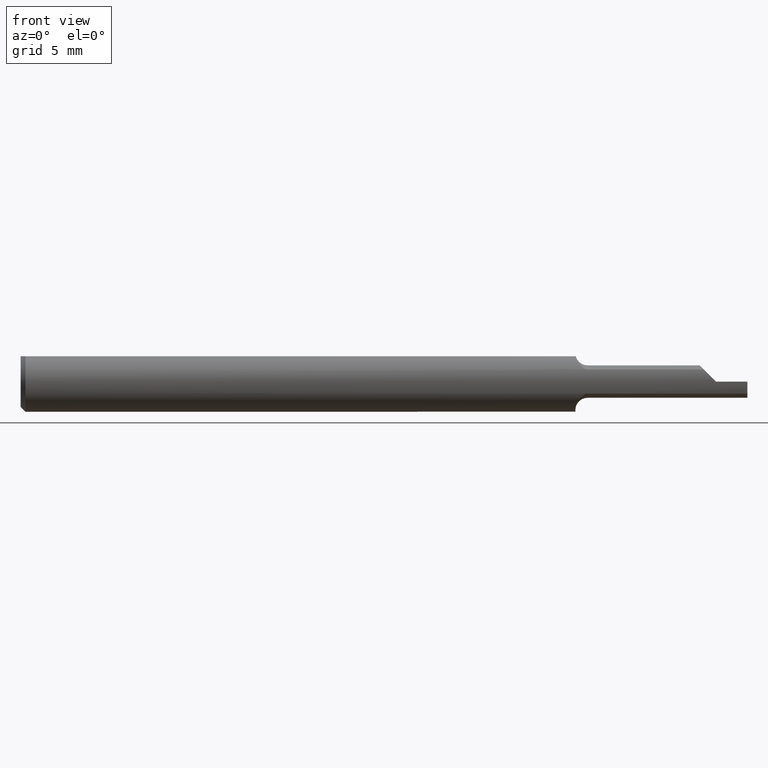
[diagram: clean part render]
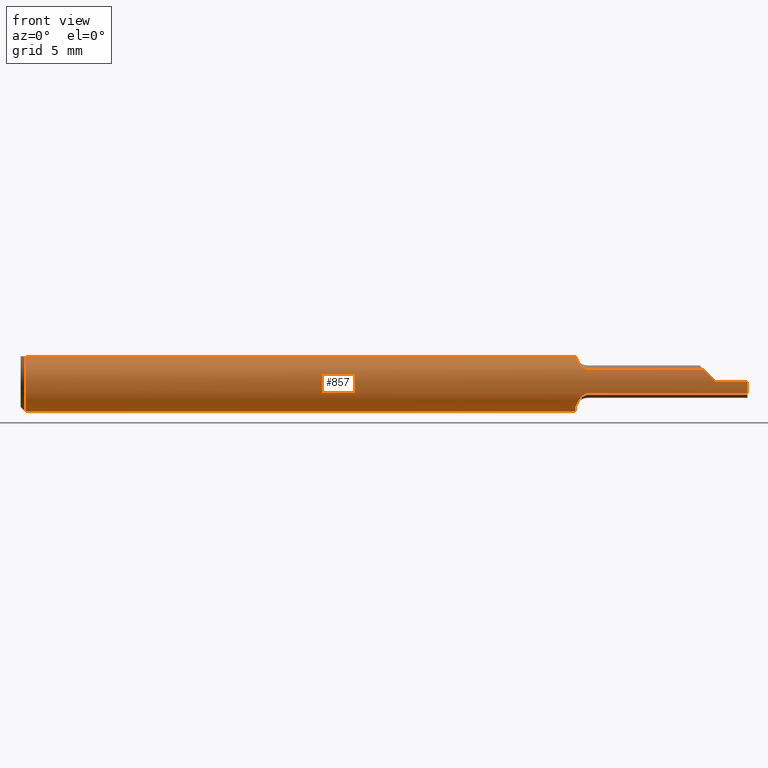
[diagram: same view with one face highlighted and labeled with its STEP entity id]
A machine part, front view. The second image highlights one B-rep face of the part: STEP entity #857.
In plain terms, the highlighted cylindrical surface (edge-blend (fillet) strip) has radius 1.5837 mm, axis along (-1, -0, -0).
Its self-contained STEP definition (entity closure, byte-faithful):
#4 = EDGE_LOOP ( 'NONE', ( #75, #637, #794, #220, #113, #784, #22, #621, #500, #458, #505, #152, #480, #800 ) ) ;
#5 = FACE_OUTER_BOUND ( 'NONE', #4, .T. ) ;
#12 = VERTEX_POINT ( 'NONE', #130 ) ;
#15 = CIRCLE ( 'NONE', #43, 0.06235000000000000264 ) ;
#17 = CARTESIAN_POINT ( 'NONE',  ( 1.145000000000000240, 0.000000000000000000, 0.000000000000000000 ) ) ;
#21 = EDGE_CURVE ( 'NONE', #372, #892, #213, .T. ) ;
#22 = ORIENTED_EDGE ( 'NONE', *, *, #860, .F. ) ;
#29 = VERTEX_POINT ( 'NONE', #821 ) ;
#32 = DIRECTION ( 'NONE',  ( 1.000000000000000000, 0.000000000000000000, 0.000000000000000000 ) ) ;
#43 = AXIS2_PLACEMENT_3D ( 'NONE', #711, #707, #641 ) ;
#53 = CARTESIAN_POINT ( 'NONE',  ( 1.149768811427851922, -0.04593844585724565777, 0.04230854379301254159 ) ) ;
#54 =( BOUNDED_CURVE ( )  B_SPLINE_CURVE ( 3, ( #98, #381, #161, #104 ),
 .UNSPECIFIED., .F., .T. ) 
 B_SPLINE_CURVE_WITH_KNOTS ( ( 4, 4 ),
 ( 4.712388980384689674, 5.125738186074483060 ),
 .UNSPECIFIED. ) 
 CURVE ( )  GEOMETRIC_REPRESENTATION_ITEM ( )  RATIONAL_B_SPLINE_CURVE ( ( 1.000000000000000000, 0.9858124784975270671, 0.9858124784975270671, 1.000000000000000000 ) ) 
 REPRESENTATION_ITEM ( '' )  );
#64 = CARTESIAN_POINT ( 'NONE',  ( 1.170000000000000151, -0.05709892395982783808, 0.02504466774844096855 ) ) ;
#69 = CARTESIAN_POINT ( 'NONE',  ( 1.145942268045293089, -0.03485000000000020026, 0.05170106381884213148 ) ) ;
#75 = ORIENTED_EDGE ( 'NONE', *, *, #694, .F. ) ;
#98 = CARTESIAN_POINT ( 'NONE',  ( 1.435000000000000053, -0.06235000000000005121, 7.960204194457796709E-18 ) ) ;
#104 = CARTESIAN_POINT ( 'NONE',  ( 1.409955332251558779, -0.05709892395982780339, 0.02504466774844103794 ) ) ;
#113 = ORIENTED_EDGE ( 'NONE', *, *, #137, .F. ) ;
#120 = VERTEX_POINT ( 'NONE', #426 ) ;
#121 = B_SPLINE_CURVE_WITH_KNOTS ( 'NONE', 3,
 ( #771, #849, #292, #69 ),
 .UNSPECIFIED., .F., .F.,
 ( 4, 4 ),
 ( 3.666883588906561326E-07, 3.024409804903166956E-05 ),
 .UNSPECIFIED. ) ;
#130 = CARTESIAN_POINT ( 'NONE',  ( 1.170000000000000151, -0.05709892395982783808, -0.02504466774844097895 ) ) ;
#137 = EDGE_CURVE ( 'NONE', #892, #326, #577, .T. ) ;
#149 = CARTESIAN_POINT ( 'NONE',  ( 1.145000000000000240, -0.02410035868005742585, -0.05750387127396364845 ) ) ;
#152 = ORIENTED_EDGE ( 'NONE', *, *, #165, .F. ) ;
#161 = CARTESIAN_POINT ( 'NONE',  ( 1.417879128153533452, -0.06057445067572577585, 0.01712087184646659752 ) ) ;
#165 = EDGE_CURVE ( 'NONE', #551, #899, #845, .T. ) ;
#167 = EDGE_CURVE ( 'NONE', #229, #551, #816, .T. ) ;
#182 = VERTEX_POINT ( 'NONE', #433 ) ;
#186 = CARTESIAN_POINT ( 'NONE',  ( 1.162833844145604534, -0.05613756098172582171, 0.02714514744121323403 ) ) ;
#188 = CARTESIAN_POINT ( 'NONE',  ( 1.145942268045293089, -0.03485000000000020026, 0.05170106381884213148 ) ) ;
#194 = VECTOR ( 'NONE', #825, 39.37007874015748143 ) ;
#200 = EDGE_CURVE ( 'NONE', #291, #329, #15, .T. ) ;
#203 = CARTESIAN_POINT ( 'NONE',  ( 1.145942268045292645, -0.03484999999999877085, -0.05170106381884308905 ) ) ;
#208 = DIRECTION ( 'NONE',  ( 0.000000000000000000, 0.000000000000000000, 1.000000000000000000 ) ) ;
#213 = B_SPLINE_CURVE_WITH_KNOTS ( 'NONE', 3,
 ( #559, #347, #689, #53, #617, #489, #615, #416, #186, #343, #896, #339 ),
 .UNSPECIFIED., .F., .F.,
 ( 4, 2, 2, 2, 2, 4 ),
 ( 3.024409804903166956E-05, 0.0003165093165950419864, 0.0006027745351410522794, 0.0008890397536870626267, 0.001032172362960071107, 0.001175304972233079913 ),
 .UNSPECIFIED. ) ;
#216 = DIRECTION ( 'NONE',  ( 0.000000000000000000, 0.000000000000000000, -1.000000000000000000 ) ) ;
#220 = ORIENTED_EDGE ( 'NONE', *, *, #316, .T. ) ;
#229 = VERTEX_POINT ( 'NONE', #652 ) ;
#233 = CARTESIAN_POINT ( 'NONE',  ( 1.409955332251558779, -0.05709892395982780339, 0.02504466774844103794 ) ) ;
#238 = CARTESIAN_POINT ( 'NONE',  ( 0.01000000000000001582, 0.000000000000000000, 0.000000000000000000 ) ) ;
#273 = VECTOR ( 'NONE', #859, 39.37007874015748143 ) ;
#274 = LINE ( 'NONE', #435, #818 ) ;
#277 = EDGE_CURVE ( 'NONE', #329, #29, #783, .T. ) ;
#291 = VERTEX_POINT ( 'NONE', #737 ) ;
#292 = CARTESIAN_POINT ( 'NONE',  ( 1.145880455779485052, -0.03452552213364552119, 0.05191978376012026247 ) ) ;
#304 = CIRCLE ( 'NONE', #802, 0.06235000000000000264 ) ;
#308 = EDGE_CURVE ( 'NONE', #12, #229, #578, .T. ) ;
#311 = LINE ( 'NONE', #581, #273 ) ;
#316 = EDGE_CURVE ( 'NONE', #770, #326, #54, .T. ) ;
#319 = EDGE_CURVE ( 'NONE', #291, #120, #450, .T. ) ;
#326 = VERTEX_POINT ( 'NONE', #233 ) ;
#329 = VERTEX_POINT ( 'NONE', #540 ) ;
#330 = CARTESIAN_POINT ( 'NONE',  ( 1.500000000000000222, 0.000000000000000000, 0.000000000000000000 ) ) ;
#339 = CARTESIAN_POINT ( 'NONE',  ( 1.170000000000000151, -0.05709892395982783808, 0.02504466774844096855 ) ) ;
#343 = CARTESIAN_POINT ( 'NONE',  ( 1.166182746789183433, -0.05687562864610639507, 0.02556262210127104723 ) ) ;
#347 = CARTESIAN_POINT ( 'NONE',  ( 1.146534511548445989, -0.03795892839402155439, 0.04960543663965543554 ) ) ;
#358 = CARTESIAN_POINT ( 'NONE',  ( 1.145000000000000240, 0.03386738844375224849, 0.05234999999999997294 ) ) ;
#360 = CARTESIAN_POINT ( 'NONE',  ( 1.144999999999999352, -0.02787679624425087183, -0.05592113435880396305 ) ) ;
#372 = VERTEX_POINT ( 'NONE', #188 ) ;
#381 = CARTESIAN_POINT ( 'NONE',  ( 1.426347495885637029, -0.06235000000000000264, 0.008652504114362861293 ) ) ;
#401 = CARTESIAN_POINT ( 'NONE',  ( 1.435000000000000053, -0.06235000000000005121, 7.960204194457796709E-18 ) ) ;
#416 = CARTESIAN_POINT ( 'NONE',  ( 1.161301950600605259, -0.05561629140796690157, 0.02821490679420931430 ) ) ;
#417 = EDGE_CURVE ( 'NONE', #810, #770, #553, .T. ) ;
#426 = CARTESIAN_POINT ( 'NONE',  ( 1.145765915872935414, -0.03386738844375226237, 0.05234999999999997294 ) ) ;
#433 = CARTESIAN_POINT ( 'NONE',  ( 1.500000000000000222, -0.05709892395982777563, -0.02504466774844104834 ) ) ;
#435 = CARTESIAN_POINT ( 'NONE',  ( 0.000000000000000000, 0.03386738844375224849, 0.05234999999999997294 ) ) ;
#444 = CARTESIAN_POINT ( 'NONE',  ( 1.317830771365940068, -0.05709892395982781726, 0.02504466774844102059 ) ) ;
#450 = LINE ( 'NONE', #869, #801 ) ;
#454 = CARTESIAN_POINT ( 'NONE',  ( 1.149421047945414553, -0.04628690345972887032, -0.04228592193483770439 ) ) ;
#456 = AXIS2_PLACEMENT_3D ( 'NONE', #17, #782, #216 ) ;
#458 = ORIENTED_EDGE ( 'NONE', *, *, #277, .T. ) ;
#469 = EDGE_CURVE ( 'NONE', #182, #810, #304, .T. ) ;
#480 = ORIENTED_EDGE ( 'NONE', *, *, #167, .F. ) ;
#489 = CARTESIAN_POINT ( 'NONE',  ( 1.154965665116549189, -0.05211778002388978842, 0.03437904460485392832 ) ) ;
#491 = DIRECTION ( 'NONE',  ( -1.000000000000000000, -0.000000000000000000, -0.000000000000000000 ) ) ;
#494 = CARTESIAN_POINT ( 'NONE',  ( 1.145304235025794259, -0.03150070370546153437, -0.05395871515604051816 ) ) ;
#496 = CARTESIAN_POINT ( 'NONE',  ( 0.000000000000000000, 0.000000000000000000, 0.000000000000000000 ) ) ;
#500 = ORIENTED_EDGE ( 'NONE', *, *, #200, .T. ) ;
#505 = ORIENTED_EDGE ( 'NONE', *, *, #822, .F. ) ;
#519 = DIRECTION ( 'NONE',  ( 0.000000000000000000, 0.000000000000000000, -1.000000000000000000 ) ) ;
#526 = CARTESIAN_POINT ( 'NONE',  ( 1.166143214247033821, -0.05709892395982783114, -0.02504466774844098242 ) ) ;
#540 = CARTESIAN_POINT ( 'NONE',  ( 0.01000000000000001582, 0.000000000000000000, -0.06235000000000000264 ) ) ;
#549 = CARTESIAN_POINT ( 'NONE',  ( 2.249639673992787780E-32, -0.06234999999999999570, 1.836970198721030181E-16 ) ) ;
#551 = VERTEX_POINT ( 'NONE', #149 ) ;
#553 = LINE ( 'NONE', #549, #194 ) ;
#557 = DIRECTION ( 'NONE',  ( -1.000000000000000000, -0.000000000000000000, -0.000000000000000000 ) ) ;
#559 = CARTESIAN_POINT ( 'NONE',  ( 1.145942268045293089, -0.03485000000000020026, 0.05170106381884213148 ) ) ;
#568 = CARTESIAN_POINT ( 'NONE',  ( 1.145000000000000240, -0.02410035868005742585, -0.05750387127396364845 ) ) ;
#569 = AXIS2_PLACEMENT_3D ( 'NONE', #496, #557, #709 ) ;
#572 = DIRECTION ( 'NONE',  ( -1.000000000000000000, -0.000000000000000000, -0.000000000000000000 ) ) ;
#577 = LINE ( 'NONE', #444, #753 ) ;
#578 = B_SPLINE_CURVE_WITH_KNOTS ( 'NONE', 3,
 ( #726, #526, #600, #887, #808, #454, #582, #788 ),
 .UNSPECIFIED., .F., .F.,
 ( 4, 2, 2, 4 ),
 ( 1.966152330163128906E-07, 0.0002891302422685136458, 0.0005780638693040109077, 0.001155931123375005106 ),
 .UNSPECIFIED. ) ;
#581 = CARTESIAN_POINT ( 'NONE',  ( 1.317830771365940068, -0.05709892395982781726, -0.02504466774844102059 ) ) ;
#582 = CARTESIAN_POINT ( 'NONE',  ( 1.147122115373512941, -0.04104350122011562324, -0.04752622675404101493 ) ) ;
#600 = CARTESIAN_POINT ( 'NONE',  ( 1.162680055304135873, -0.05623438673456740422, -0.02705656917955270163 ) ) ;
#612 = CARTESIAN_POINT ( 'NONE',  ( 1.500000000000000222, -0.06235000000000000264, 0.000000000000000000 ) ) ;
#615 = CARTESIAN_POINT ( 'NONE',  ( 1.157171011499109614, -0.05375707205712539072, 0.03169575752955384323 ) ) ;
#617 = CARTESIAN_POINT ( 'NONE',  ( 1.151280739323583768, -0.04824221158193041370, 0.03963421153808106140 ) ) ;
#621 = ORIENTED_EDGE ( 'NONE', *, *, #319, .F. ) ;
#637 = ORIENTED_EDGE ( 'NONE', *, *, #469, .T. ) ;
#641 = DIRECTION ( 'NONE',  ( 0.000000000000000000, 0.000000000000000000, -1.000000000000000000 ) ) ;
#645 = DIRECTION ( 'NONE',  ( 1.000000000000000000, 0.000000000000000000, 0.000000000000000000 ) ) ;
#652 = CARTESIAN_POINT ( 'NONE',  ( 1.145942268045292645, -0.03484999999999877085, -0.05170106381884308905 ) ) ;
#689 = CARTESIAN_POINT ( 'NONE',  ( 1.147399530099769027, -0.04079085751473062599, 0.04729122147795818132 ) ) ;
#694 = EDGE_CURVE ( 'NONE', #182, #12, #311, .T. ) ;
#707 = DIRECTION ( 'NONE',  ( 1.000000000000000000, 0.000000000000000000, 0.000000000000000000 ) ) ;
#709 = DIRECTION ( 'NONE',  ( 0.000000000000000000, 0.000000000000000000, 1.000000000000000000 ) ) ;
#711 = CARTESIAN_POINT ( 'NONE',  ( 0.01000000000000001582, 0.000000000000000000, 0.000000000000000000 ) ) ;
#722 = DIRECTION ( 'NONE',  ( 1.000000000000000000, 0.000000000000000000, 0.000000000000000000 ) ) ;
#726 = CARTESIAN_POINT ( 'NONE',  ( 1.170000000000000151, -0.05709892395982783808, -0.02504466774844097895 ) ) ;
#737 = CARTESIAN_POINT ( 'NONE',  ( 0.01000000000000001582, -0.03386738844375224849, 0.05234999999999997294 ) ) ;
#753 = VECTOR ( 'NONE', #645, 39.37007874015748143 ) ;
#766 = CYLINDRICAL_SURFACE ( 'NONE', #569, 0.06235000000000000264 ) ;
#770 = VERTEX_POINT ( 'NONE', #401 ) ;
#771 = CARTESIAN_POINT ( 'NONE',  ( 1.145765915872935414, -0.03386738844375226237, 0.05234999999999997294 ) ) ;
#782 = DIRECTION ( 'NONE',  ( 1.000000000000000000, 0.000000000000000000, 0.000000000000000000 ) ) ;
#783 = CIRCLE ( 'NONE', #897, 0.06235000000000000264 ) ;
#784 = ORIENTED_EDGE ( 'NONE', *, *, #21, .F. ) ;
#788 = CARTESIAN_POINT ( 'NONE',  ( 1.145942268045292645, -0.03484999999999877085, -0.05170106381884308905 ) ) ;
#794 = ORIENTED_EDGE ( 'NONE', *, *, #417, .T. ) ;
#800 = ORIENTED_EDGE ( 'NONE', *, *, #308, .F. ) ;
#801 = VECTOR ( 'NONE', #722, 39.37007874015748143 ) ;
#802 = AXIS2_PLACEMENT_3D ( 'NONE', #330, #572, #208 ) ;
#808 = CARTESIAN_POINT ( 'NONE',  ( 1.154976022255971291, -0.05212837490310879424, -0.03436449565181044774 ) ) ;
#810 = VERTEX_POINT ( 'NONE', #612 ) ;
#816 = B_SPLINE_CURVE_WITH_KNOTS ( 'NONE', 3,
 ( #203, #494, #360, #568 ),
 .UNSPECIFIED., .F., .F.,
 ( 4, 4 ),
 ( 0.001155931123375005106, 0.001468427816927887330 ),
 .UNSPECIFIED. ) ;
#818 = VECTOR ( 'NONE', #491, 39.37007874015748143 ) ;
#821 = CARTESIAN_POINT ( 'NONE',  ( 0.01000000000000001582, 0.03386738844375224849, 0.05234999999999997294 ) ) ;
#822 = EDGE_CURVE ( 'NONE', #899, #29, #274, .T. ) ;
#825 = DIRECTION ( 'NONE',  ( -1.000000000000000000, -0.000000000000000000, -0.000000000000000000 ) ) ;
#845 = CIRCLE ( 'NONE', #456, 0.06235000000000000264 ) ;
#849 = CARTESIAN_POINT ( 'NONE',  ( 1.145821675931804284, -0.03419799903501646171, 0.05213611428236934048 ) ) ;
#857 = ADVANCED_FACE ( 'NONE', ( #5 ), #766, .T. ) ;
#859 = DIRECTION ( 'NONE',  ( -1.000000000000000000, -0.000000000000000000, -0.000000000000000000 ) ) ;
#860 = EDGE_CURVE ( 'NONE', #120, #372, #121, .T. ) ;
#869 = CARTESIAN_POINT ( 'NONE',  ( 0.000000000000000000, -0.03386738844375224849, 0.05234999999999997294 ) ) ;
#887 = CARTESIAN_POINT ( 'NONE',  ( 1.157196474758900528, -0.05377067273726876540, -0.03167142151155134117 ) ) ;
#892 = VERTEX_POINT ( 'NONE', #64 ) ;
#896 = CARTESIAN_POINT ( 'NONE',  ( 1.168066869119936735, -0.05709892396012083982, 0.02504466774777315205 ) ) ;
#897 = AXIS2_PLACEMENT_3D ( 'NONE', #238, #32, #519 ) ;
#899 = VERTEX_POINT ( 'NONE', #358 ) ;